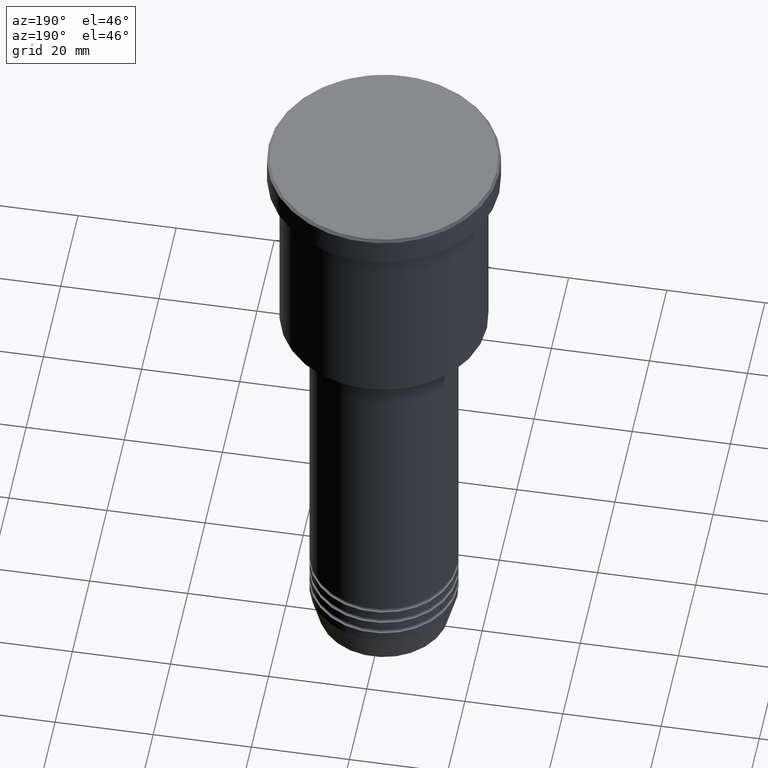
[diagram: clean part render]
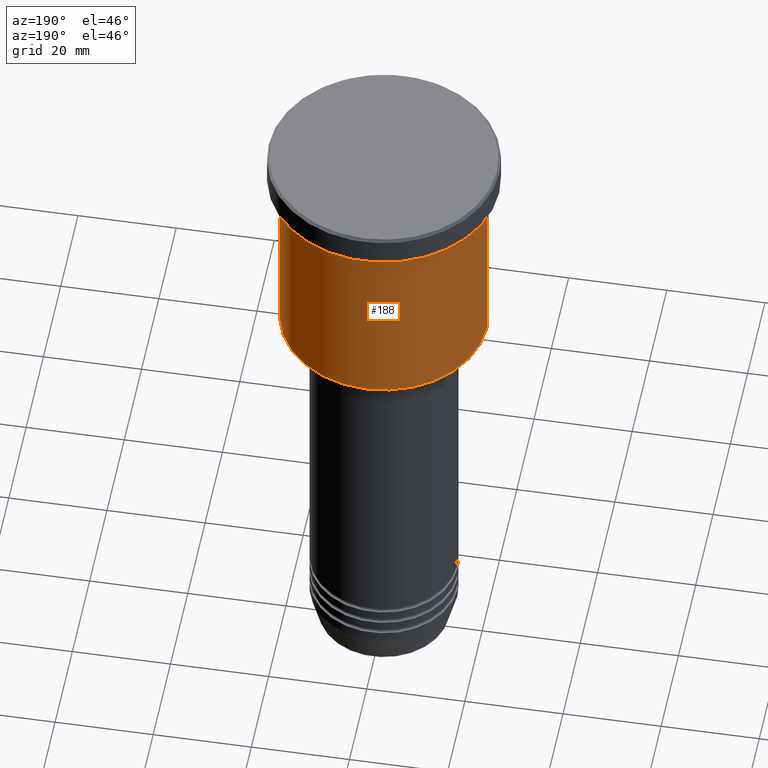
[diagram: same view with one face highlighted and labeled with its STEP entity id]
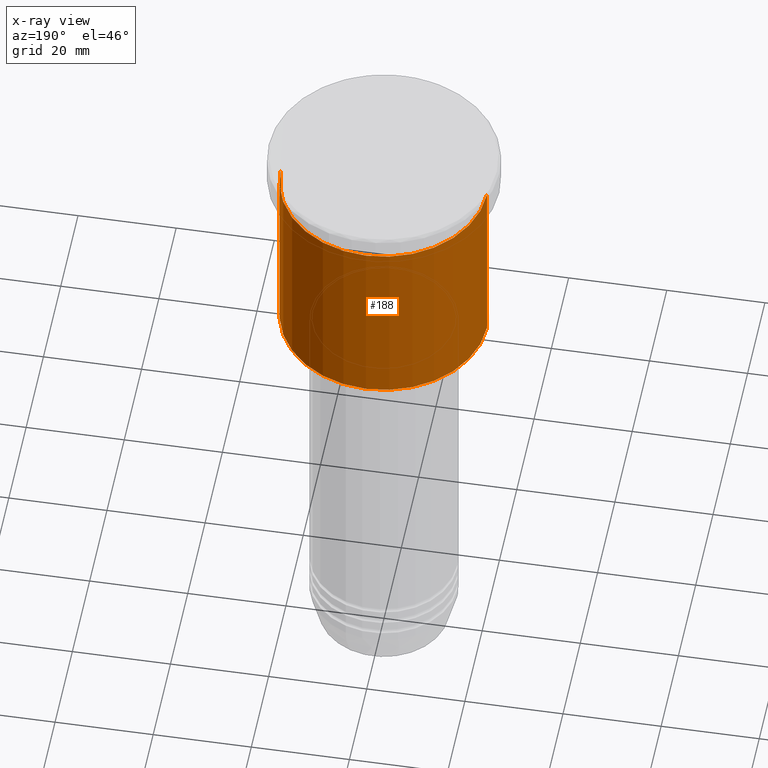
[diagram: x-ray of the same camera — body ghosted, the highlighted face saturated]
A machine part, auxiliary view. The second image highlights one B-rep face of the part: STEP entity #188.
The next image is the same camera in x-ray: the body ghosted, the highlighted face saturated — about 0% of this face is hidden behind the body in this view.
In plain terms, the highlighted cylindrical surface (partial cylindrical patch) has radius 21 mm, axis along (-0, -0, 1).
Its self-contained STEP definition (entity closure, byte-faithful):
#27 = CARTESIAN_POINT ( 'NONE',  ( 0.000000000000000000, 0.000000000000000000, -45.49999999999998579 ) ) ;
#81 = VECTOR ( 'NONE', #289, 1000.000000000000000 ) ;
#90 = EDGE_LOOP ( 'NONE', ( #421, #357, #430, #940 ) ) ;
#100 = DIRECTION ( 'NONE',  ( -0.000000000000000000, -0.000000000000000000, 1.000000000000000000 ) ) ;
#105 = LINE ( 'NONE', #473, #81 ) ;
#129 = DIRECTION ( 'NONE',  ( -1.000000000000000000, 0.000000000000000000, 0.000000000000000000 ) ) ;
#147 = CYLINDRICAL_SURFACE ( 'NONE', #743, 21.00000000000000000 ) ;
#188 = ADVANCED_FACE ( 'NONE', ( #1155 ), #147, .T. ) ;
#218 = DIRECTION ( 'NONE',  ( -0.000000000000000000, -0.000000000000000000, 1.000000000000000000 ) ) ;
#224 = CARTESIAN_POINT ( 'NONE',  ( -21.00000000000000000, 2.571758278209441661E-15, -45.49999999999998579 ) ) ;
#243 = EDGE_CURVE ( 'NONE', #264, #1128, #1168, .T. ) ;
#246 = DIRECTION ( 'NONE',  ( 1.000000000000000000, 0.000000000000000000, 0.000000000000000000 ) ) ;
#261 = DIRECTION ( 'NONE',  ( -0.000000000000000000, -0.000000000000000000, 1.000000000000000000 ) ) ;
#264 = VERTEX_POINT ( 'NONE', #654 ) ;
#289 = DIRECTION ( 'NONE',  ( -0.000000000000000000, -0.000000000000000000, 1.000000000000000000 ) ) ;
#314 = CARTESIAN_POINT ( 'NONE',  ( 21.00000000000000000, 0.000000000000000000, -6.999999999999994671 ) ) ;
#357 = ORIENTED_EDGE ( 'NONE', *, *, #1066, .T. ) ;
#421 = ORIENTED_EDGE ( 'NONE', *, *, #475, .T. ) ;
#430 = ORIENTED_EDGE ( 'NONE', *, *, #910, .F. ) ;
#447 = CIRCLE ( 'NONE', #1114, 21.00000000000000000 ) ;
#473 = CARTESIAN_POINT ( 'NONE',  ( -21.00000000000000000, 2.571758278209441661E-15, 0.000000000000000000 ) ) ;
#475 = EDGE_CURVE ( 'NONE', #264, #1083, #763, .T. ) ;
#598 = VECTOR ( 'NONE', #100, 1000.000000000000000 ) ;
#606 = DIRECTION ( 'NONE',  ( -0.000000000000000000, -0.000000000000000000, 1.000000000000000000 ) ) ;
#654 = CARTESIAN_POINT ( 'NONE',  ( 21.00000000000000000, 0.000000000000000000, -45.49999999999998579 ) ) ;
#676 = CARTESIAN_POINT ( 'NONE',  ( -21.00000000000000000, 2.571758278209441661E-15, -6.999999999999994671 ) ) ;
#743 = AXIS2_PLACEMENT_3D ( 'NONE', #907, #261, #246 ) ;
#763 = CIRCLE ( 'NONE', #946, 21.00000000000000000 ) ;
#824 = VERTEX_POINT ( 'NONE', #676 ) ;
#907 = CARTESIAN_POINT ( 'NONE',  ( 0.000000000000000000, 0.000000000000000000, 0.000000000000000000 ) ) ;
#910 = EDGE_CURVE ( 'NONE', #1128, #824, #447, .T. ) ;
#940 = ORIENTED_EDGE ( 'NONE', *, *, #243, .F. ) ;
#946 = AXIS2_PLACEMENT_3D ( 'NONE', #27, #218, #129 ) ;
#1066 = EDGE_CURVE ( 'NONE', #1083, #824, #105, .T. ) ;
#1083 = VERTEX_POINT ( 'NONE', #224 ) ;
#1114 = AXIS2_PLACEMENT_3D ( 'NONE', #1136, #606, #1177 ) ;
#1128 = VERTEX_POINT ( 'NONE', #314 ) ;
#1136 = CARTESIAN_POINT ( 'NONE',  ( 0.000000000000000000, 0.000000000000000000, -6.999999999999994671 ) ) ;
#1155 = FACE_OUTER_BOUND ( 'NONE', #90, .T. ) ;
#1168 = LINE ( 'NONE', #1180, #598 ) ;
#1177 = DIRECTION ( 'NONE',  ( 1.000000000000000000, 0.000000000000000000, 0.000000000000000000 ) ) ;
#1180 = CARTESIAN_POINT ( 'NONE',  ( 21.00000000000000000, 0.000000000000000000, 0.000000000000000000 ) ) ;